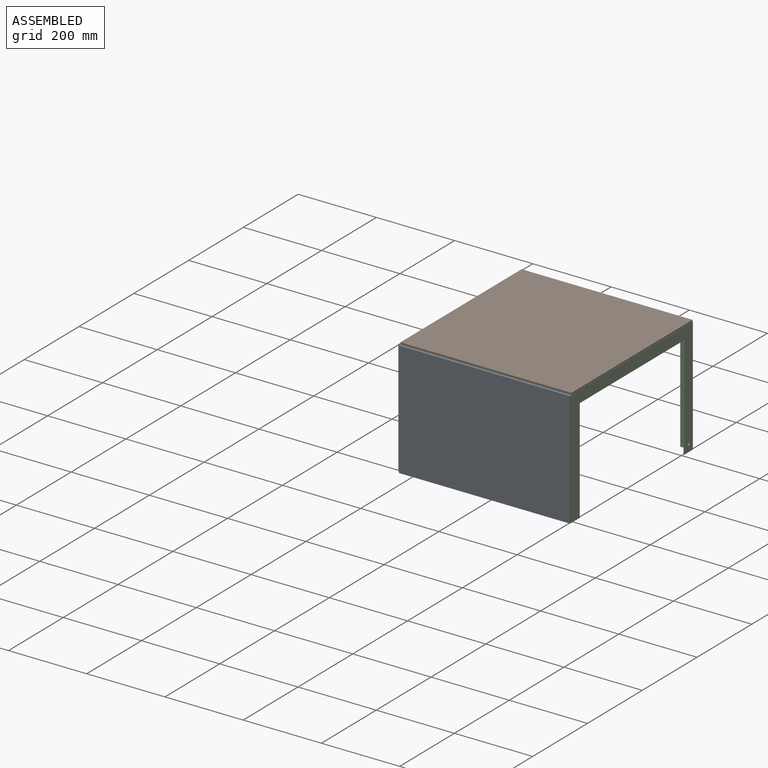
[diagram: assembled view]
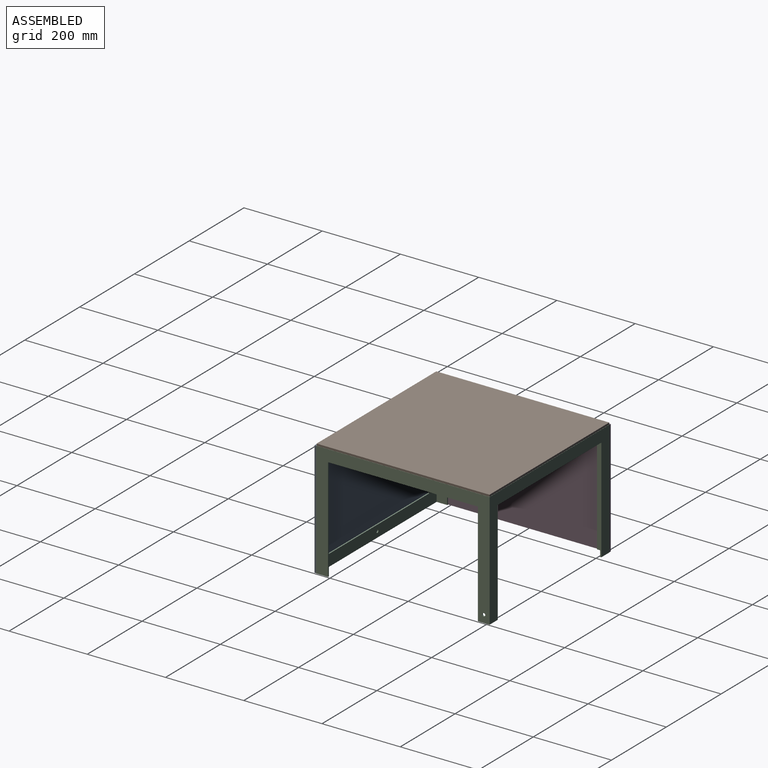
[diagram: assembled view, second angle]
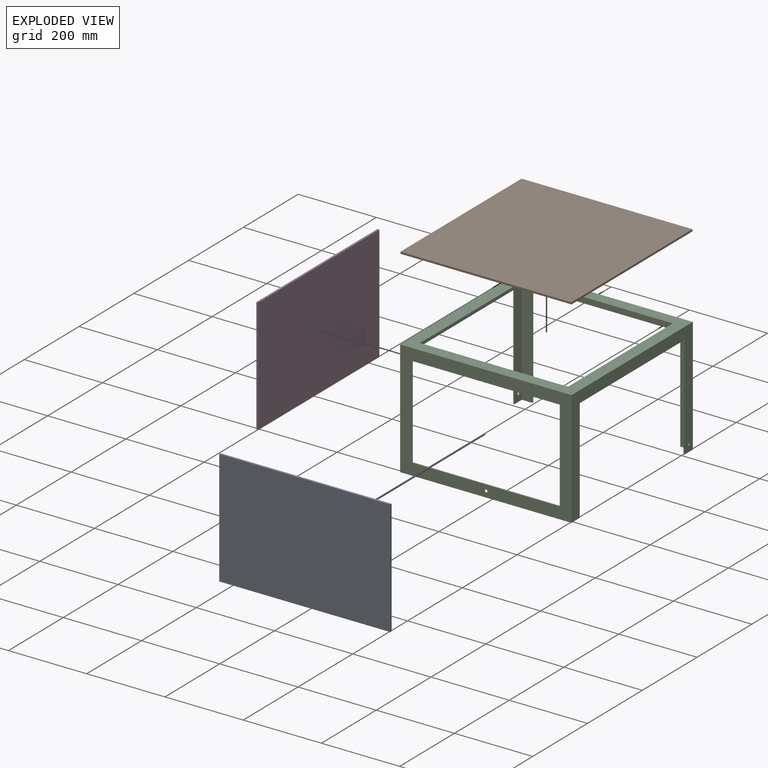
[diagram: exploded view]
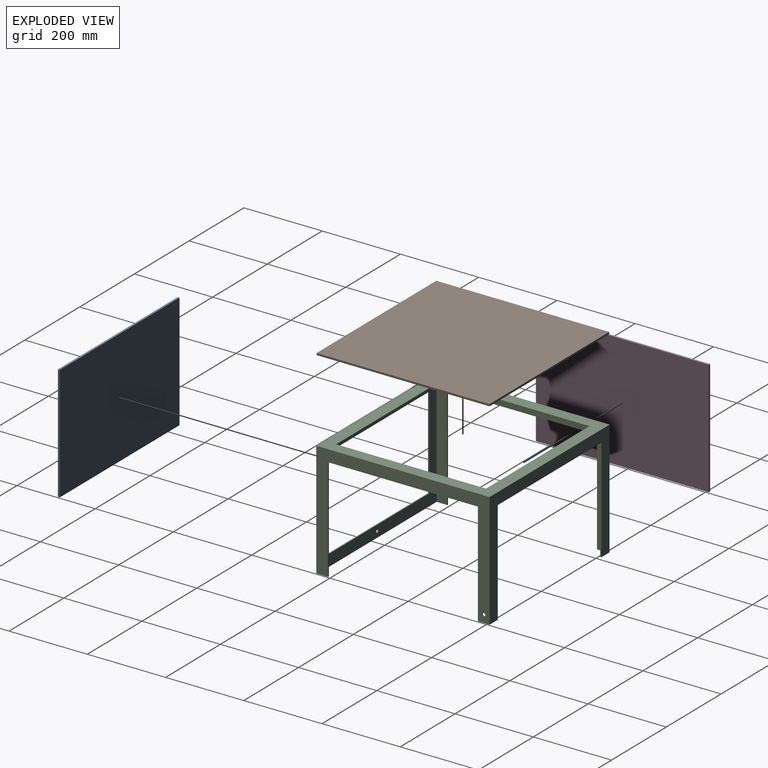
[diagram: exploded view, second angle]
ASSEMBLY  parts=4 mates=3
PART A: 6 faces, bbox 437x5x294.5 mm
  f0: plane 437x5mm, normal (0,0,1), area 2185mm2, adj f1,f3,f4,f5
  f1: plane 294.5x5mm, normal (-1,0,0), area 1472.5mm2, adj f0,f2,f4,f5
  f2: plane 437x5mm, normal (0,0,-1), area 2185mm2, adj f1,f3,f4,f5
  f3: plane 294.5x5mm, normal (1,0,0), area 1472.5mm2, adj f0,f2,f4,f5
  f4: plane 437x294.5mm, normal (0,-1,0), area 128696.5mm2, adj f0,f1,f2,f3
  f5: plane 437x294.5mm, normal (0,1,0), area 128696.5mm2, adj f0,f1,f2,f3
PART B: 6 faces, bbox 437x5x442 mm
  f0: plane 437x5mm, normal (0,0,1), area 2185mm2, adj f1,f3,f4,f5
  f1: plane 442x5mm, normal (-1,0,0), area 2210mm2, adj f0,f2,f4,f5
  f2: plane 437x5mm, normal (0,0,-1), area 2185mm2, adj f1,f3,f4,f5
  f3: plane 442x5mm, normal (1,0,0), area 2210mm2, adj f0,f2,f4,f5
  f4: plane 442x437mm, normal (0,-1,0), area 193154mm2, adj f0,f1,f2,f3
  f5: plane 442x437mm, normal (0,1,0), area 193154mm2, adj f0,f1,f2,f3
PART C: 33 faces, bbox 438x443x295 mm
  f0: plane 443x438mm, normal (0,0,1), area 49260mm2, adj f3,f4,f8,f9,f25,f26,f27,f28
  f1: plane 437x432mm, normal (0,0,-1), area 44010mm2, adj f6,f7,f10,f11,f25,f26,f27,f28
  f2: plane 30x30mm, normal (0,0,-1), area 171mm2, adj f4,f7,f9,f11,f14,f19
  f3: plane 443x295mm, normal (-1,0,0), area 29139.7mm2, adj f0,f5,f8,f9,f12,f22,f23,f24
  f4: plane 443x295mm, normal (1,0,0), area 29139.7mm2, adj f0,f2,f8,f9,f12,f19,f20,f21
  f5: plane 30x30mm, normal (0,0,-1), area 171mm2, adj f3,f6,f9,f11,f13,f24
  f6: plane 437x292mm, normal (1,0,0), area 26058.7mm2, adj f1,f5,f10,f11,f12,f22,f23,f24
  f7: plane 437x292mm, normal (-1,0,0), area 26058.7mm2, adj f1,f2,f10,f11,f12,f19,f20,f21
  f8: plane 438x295mm, normal (0,-1,0), area 40329.7mm2, adj f0,f3,f4,f12,f16,f17,f18,f29
  f9: plane 438x295mm, normal (0,1,0), area 29040mm2, adj f0,f2,f3,f4,f5,f13,f14,f15
  f10: plane 432x292mm, normal (0,1,0), area 37263.7mm2, adj f1,f6,f7,f12,f16,f17,f18,f29
  f11: plane 432x292mm, normal (0,-1,0), area 25974mm2, adj f1,f2,f5,f6,f7,f13,f14,f15
  f12: plane 438x30mm, normal (0,0,-1), area 1476mm2, adj f3,f4,f6,f7,f8,f10,f20,f23
  f13: plane 265x3mm, normal (1,0,0), area 795mm2, adj f5,f9,f11,f15
  f14: plane 265x3mm, normal (-1,0,0), area 795mm2, adj f2,f9,f11,f15
  f15: plane 378x3mm, normal (0,0,-1), area 1134mm2, adj f9,f11,f13,f14
  f16: plane 378x3mm, normal (0,0,-1), area 1134mm2, adj f8,f10,f17,f18
  f17: plane 235x3mm, normal (1,0,0), area 705mm2, adj f8,f10,f16,f29
  f18: plane 235x3mm, normal (-1,0,0), area 705mm2, adj f8,f10,f16,f29
  f19: plane 265x3mm, normal (0,-1,0), area 795mm2, adj f2,f4,f7,f21
  f20: plane 265x3mm, normal (0,1,0), area 795mm2, adj f4,f7,f12,f21
  f21: plane 383x3mm, normal (0,0,-1), area 1149mm2, adj f4,f7,f19,f20
  f22: plane 383x3mm, normal (0,0,-1), area 1149mm2, adj f3,f6,f23,f24
  f23: plane 265x3mm, normal (0,1,0), area 795mm2, adj f3,f6,f12,f22
  f24: plane 265x3mm, normal (0,-1,0), area 795mm2, adj f3,f5,f6,f22
  f25: plane 378x3mm, normal (0,-1,0), area 1134mm2, adj f0,f1,f26,f28
  f26: plane 383x3mm, normal (1,0,0), area 1149mm2, adj f0,f1,f25,f27
  f27: plane 378x3mm, normal (0,1,0), area 1134mm2, adj f0,f1,f26,f28
  f28: plane 383x3mm, normal (-1,0,0), area 1149mm2, adj f0,f1,f25,f27
  f29: plane 378x3mm, normal (0,0,1), area 1134mm2, adj f8,f10,f17,f18
  f30: cylinder r=4mm len=8mm, axis (0,-1,0), area 75.4mm2, adj f8,f10
  f31: cylinder r=4mm len=8mm, axis (1,0,0), area 75.4mm2, adj f4,f7
  f32: cylinder r=4mm len=8mm, axis (1,0,0), area 75.4mm2, adj f3,f6
PART D: 6 faces, bbox 442x5x294.5 mm
  f0: plane 442x5mm, normal (0,0,1), area 2210mm2, adj f1,f3,f4,f5
  f1: plane 294.5x5mm, normal (-1,0,0), area 1472.5mm2, adj f0,f2,f4,f5
  f2: plane 442x5mm, normal (0,0,-1), area 2210mm2, adj f1,f3,f4,f5
  f3: plane 294.5x5mm, normal (1,0,0), area 1472.5mm2, adj f0,f2,f4,f5
  f4: plane 442x294.5mm, normal (0,-1,0), area 130169mm2, adj f0,f1,f2,f3
  f5: plane 442x294.5mm, normal (0,1,0), area 130169mm2, adj f0,f1,f2,f3
PLACE A t=(-221.83,-223.78,-148.04)mm
PLACE B rot(axis=(-1,0,0),90deg) t=(-221.83,-223.28,146.96)mm
PLACE C t=(-3.33,-2.28,-148.04)mm fixed
PLACE D rot(axis=(0,0,-1),90deg) t=(-222.33,218.72,-148.04)mm
MATE fastened C.f3 <-> D.f5  axis (-1,0,0) through (-222.33,-2.28,146.96)mm
MATE fastened C.f8 <-> A.f5  axis (0,-1,0) through (-3.33,-223.78,-148.04)mm
MATE fastened C.f0 <-> B.f5  axis (0,0,1) through (-3.33,-223.78,146.96)mm
